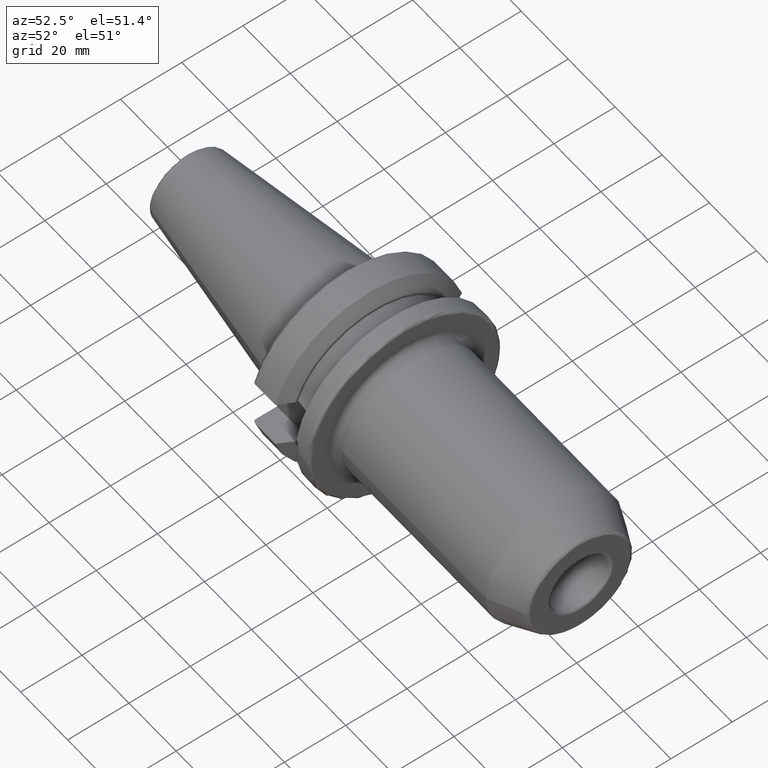
[diagram: clean part render]
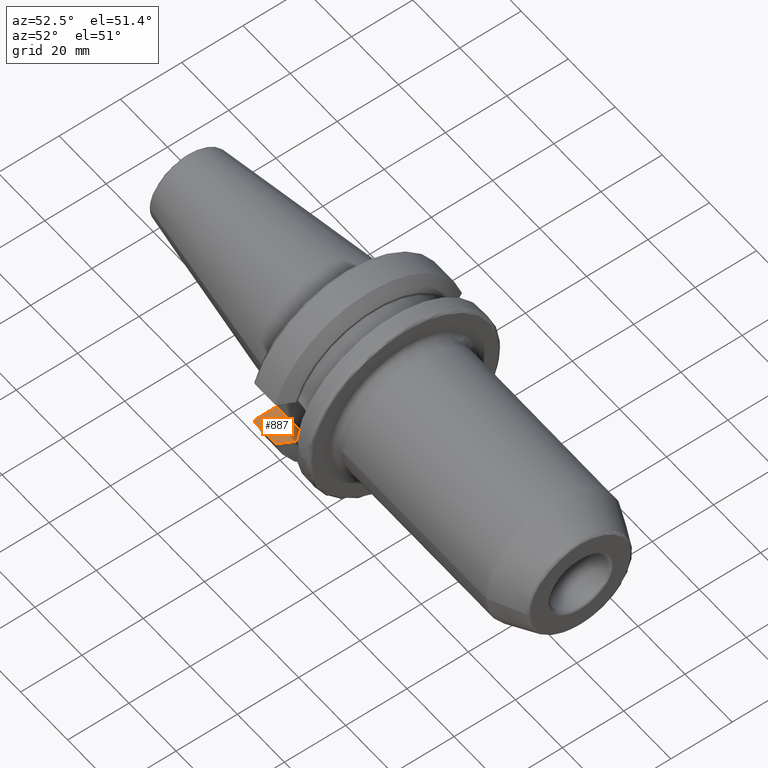
[diagram: same view with one face highlighted and labeled with its STEP entity id]
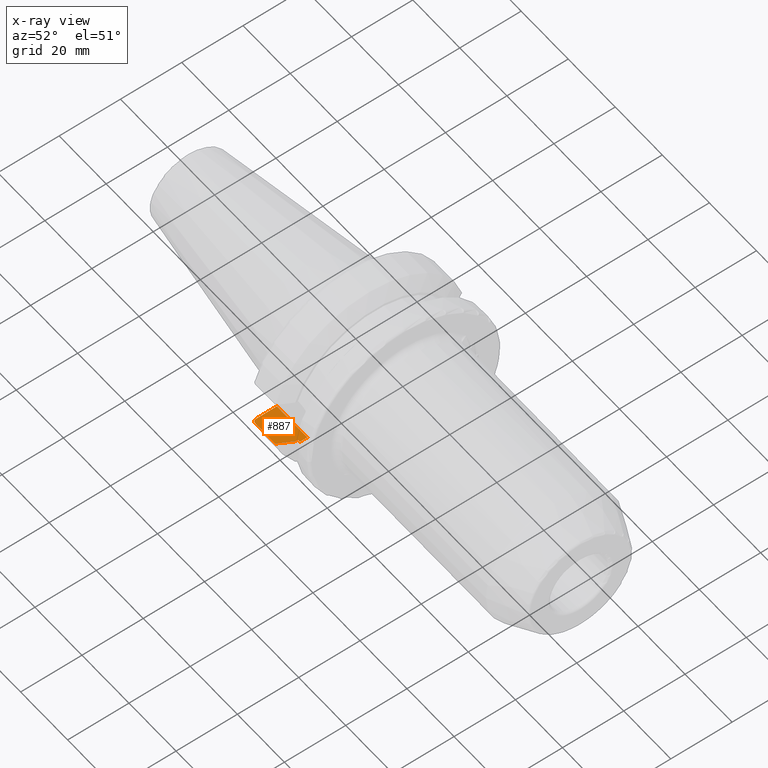
[diagram: x-ray of the same camera — body ghosted, the highlighted face saturated]
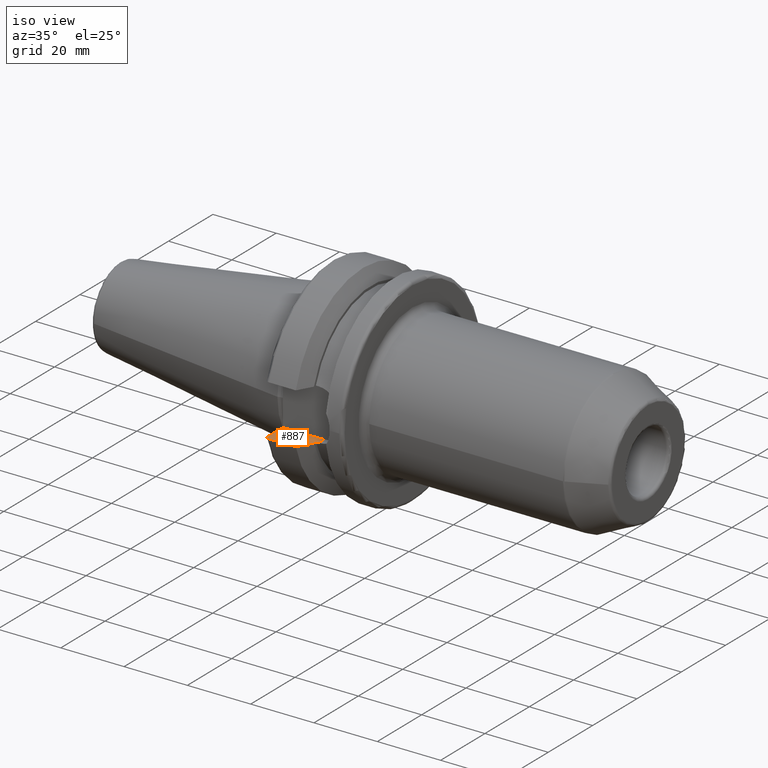
[diagram: same view with one face highlighted and labeled with its STEP entity id]
A machine part, auxiliary view. The second image highlights one B-rep face of the part: STEP entity #887.
The next image is the same camera in x-ray: the body ghosted, the highlighted face saturated — about 0% of this face is hidden behind the body in this view.
A second angle (iso view) of the same face is appended — the face is thin or edge-on in the first view.
In plain terms, the highlighted planar face has unit normal (-0, 0, 1).
Its self-contained STEP definition (entity closure, byte-faithful):
#16=(
BOUNDED_CURVE()
B_SPLINE_CURVE(2,(#1611,#1612,#1613),.UNSPECIFIED.,.F.,.F.)
B_SPLINE_CURVE_WITH_KNOTS((3,3),(0.,0.52358279083281),.UNSPECIFIED.)
CURVE()
GEOMETRIC_REPRESENTATION_ITEM()
RATIONAL_B_SPLINE_CURVE((1.,1.00307360097546,1.))
REPRESENTATION_ITEM('')
);
#40=B_SPLINE_CURVE_WITH_KNOTS('',3,(#1598,#1599,#1600,#1601,#1602,#1603,
#1604,#1605,#1606,#1607),.UNSPECIFIED.,.F.,.F.,(4,2,2,2,4),(0.,0.0366169489027566,
0.0738743445372396,0.111946181815504,0.150751871388631),.UNSPECIFIED.);
#60=LINE('',#1564,#106);
#66=LINE('',#1592,#112);
#67=LINE('',#1594,#113);
#68=LINE('',#1596,#114);
#69=LINE('',#1609,#115);
#70=LINE('',#1614,#116);
#106=VECTOR('',#1171,10.);
#112=VECTOR('',#1181,10.);
#113=VECTOR('',#1182,10.);
#114=VECTOR('',#1183,10.);
#115=VECTOR('',#1184,10.);
#116=VECTOR('',#1185,10.);
#172=PLANE('',#992);
#204=FACE_OUTER_BOUND('',#265,.T.);
#265=EDGE_LOOP('',(#686,#687,#688,#689,#690,#691,#692,#693));
#395=VERTEX_POINT('',#1514);
#404=VERTEX_POINT('',#1562);
#411=VERTEX_POINT('',#1591);
#412=VERTEX_POINT('',#1593);
#413=VERTEX_POINT('',#1595);
#414=VERTEX_POINT('',#1597);
#415=VERTEX_POINT('',#1608);
#416=VERTEX_POINT('',#1610);
#505=EDGE_CURVE('',#404,#395,#60,.T.);
#513=EDGE_CURVE('',#395,#411,#66,.T.);
#514=EDGE_CURVE('',#404,#412,#67,.T.);
#515=EDGE_CURVE('',#413,#412,#68,.T.);
#516=EDGE_CURVE('',#414,#413,#40,.T.);
#517=EDGE_CURVE('',#415,#414,#69,.T.);
#518=EDGE_CURVE('',#416,#415,#16,.T.);
#519=EDGE_CURVE('',#411,#416,#70,.T.);
#686=ORIENTED_EDGE('',*,*,#513,.F.);
#687=ORIENTED_EDGE('',*,*,#505,.F.);
#688=ORIENTED_EDGE('',*,*,#514,.T.);
#689=ORIENTED_EDGE('',*,*,#515,.F.);
#690=ORIENTED_EDGE('',*,*,#516,.F.);
#691=ORIENTED_EDGE('',*,*,#517,.F.);
#692=ORIENTED_EDGE('',*,*,#518,.F.);
#693=ORIENTED_EDGE('',*,*,#519,.F.);
#887=ADVANCED_FACE('',(#204),#172,.T.);
#992=AXIS2_PLACEMENT_3D('',#1590,#1179,#1180);
#1171=DIRECTION('',(0.,-1.,0.));
#1179=DIRECTION('center_axis',(-8.57315076930623E-17,0.,1.));
#1180=DIRECTION('ref_axis',(-1.,0.,-8.57315076930623E-17));
#1181=DIRECTION('',(-1.,0.,0.));
#1182=DIRECTION('',(-1.,0.,-8.57315076930623E-17));
#1183=DIRECTION('',(0.,1.,0.));
#1184=DIRECTION('',(-1.,0.,0.));
#1185=DIRECTION('',(0.,-1.,0.));
#1514=CARTESIAN_POINT('',(14.95,-25.0377215417058,-8.05));
#1562=CARTESIAN_POINT('',(14.95,-22.6,-8.05));
#1564=CARTESIAN_POINT('',(14.95,-22.6,-8.05));
#1590=CARTESIAN_POINT('Origin',(14.95,-22.6,-8.05));
#1591=CARTESIAN_POINT('',(14.1,-25.0377215417058,-8.05));
#1592=CARTESIAN_POINT('',(16.6,-25.0377215417058,-8.05));
#1593=CARTESIAN_POINT('',(1.99999999999999,-22.6,-8.05));
#1594=CARTESIAN_POINT('',(14.95,-22.6,-8.05));
#1595=CARTESIAN_POINT('',(1.99999999999999,-29.4184890842477,-8.05));
#1596=CARTESIAN_POINT('',(1.99999999999999,3.95,-8.05));
#1597=CARTESIAN_POINT('',(2.99999999999999,-30.4540227227866,-8.05));
#1598=CARTESIAN_POINT('Ctrl Pts',(3.,-30.4540227227866,-8.05));
#1599=CARTESIAN_POINT('Ctrl Pts',(2.87794350365748,-30.4540227227866,-8.05));
#1600=CARTESIAN_POINT('Ctrl Pts',(2.73442803339431,-30.4247631098996,-8.05));
#1601=CARTESIAN_POINT('Ctrl Pts',(2.50758665841081,-30.3289456947341,-8.05));
#1602=CARTESIAN_POINT('Ctrl Pts',(2.38465986426588,-30.2446912007727,-8.05));
#1603=CARTESIAN_POINT('Ctrl Pts',(2.2089547883793,-30.0653098968133,-8.05));
#1604=CARTESIAN_POINT('Ctrl Pts',(2.12587454939785,-29.9376810968085,-8.05));
#1605=CARTESIAN_POINT('Ctrl Pts',(2.02950258743517,-29.7002346307938,-8.05));
#1606=CARTESIAN_POINT('Ctrl Pts',(1.99999999999999,-29.5478413828248,-8.05));
#1607=CARTESIAN_POINT('Ctrl Pts',(1.99999999999999,-29.4184890842477,-8.05));
#1608=CARTESIAN_POINT('',(11.5690363073382,-30.4540227227866,-8.05));
#1609=CARTESIAN_POINT('',(7.28451815366907,-30.4540227227866,-8.05));
#1610=CARTESIAN_POINT('',(14.1,-25.8705666509569,-8.05));
#1611=CARTESIAN_POINT('Ctrl Pts',(14.1,-25.8705666509569,-8.05));
#1612=CARTESIAN_POINT('Ctrl Pts',(12.9374976962938,-27.989970265181,-8.05));
#1613=CARTESIAN_POINT('Ctrl Pts',(11.5690363073382,-30.4540227227866,-8.05));
#1614=CARTESIAN_POINT('',(14.1,1.85,-8.05));